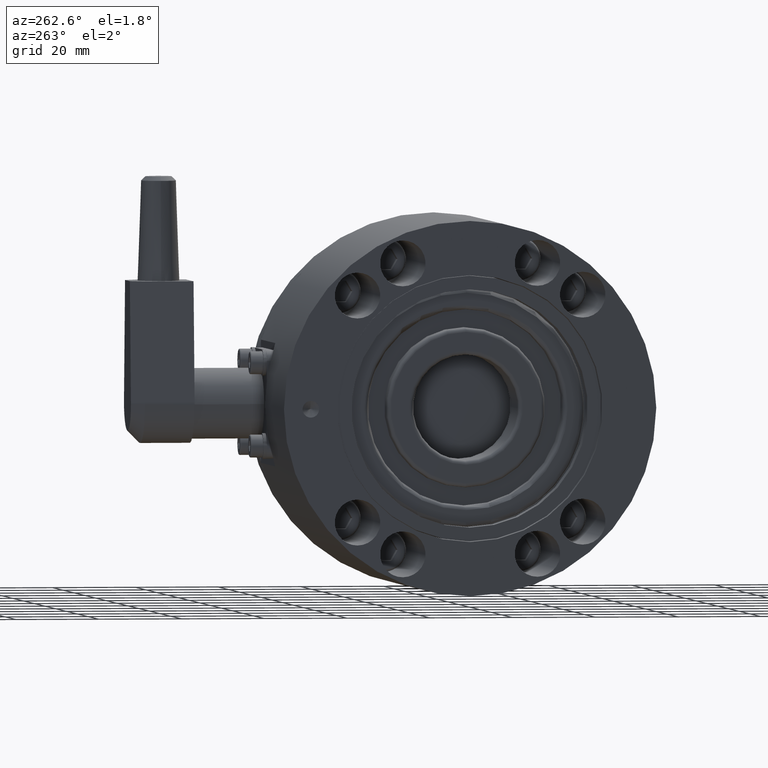
[diagram: clean part render]
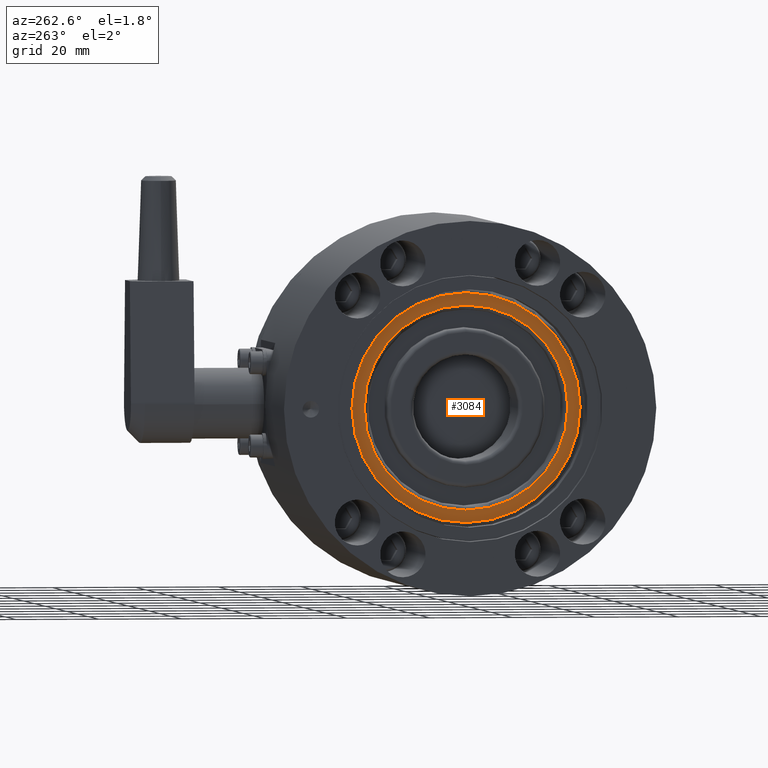
[diagram: same view with one face highlighted and labeled with its STEP entity id]
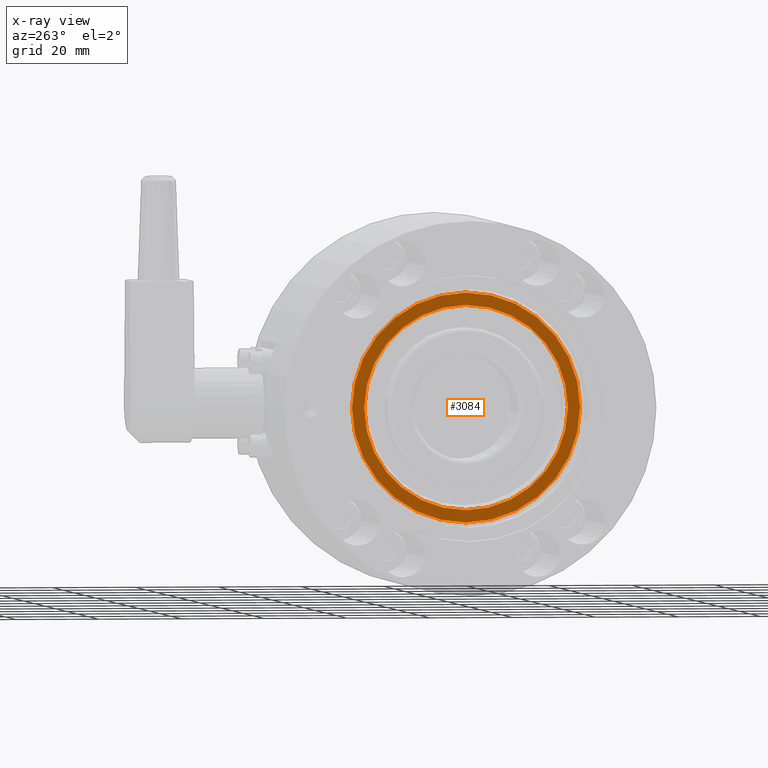
[diagram: x-ray of the same camera — body ghosted, the highlighted face saturated]
A machine part, auxiliary view. The second image highlights one B-rep face of the part: STEP entity #3084.
The next image is the same camera in x-ray: the body ghosted, the highlighted face saturated — about 0% of this face is hidden behind the body in this view.
In plain terms, the highlighted planar face has unit normal (1, 0, 0).
Its self-contained STEP definition (entity closure, byte-faithful):
#172 = VERTEX_POINT ( 'NONE', #6543 ) ;
#534 = ORIENTED_EDGE ( 'NONE', *, *, #9731, .T. ) ;
#1020 = FACE_OUTER_BOUND ( 'NONE', #9811, .T. ) ;
#1667 = FACE_BOUND ( 'NONE', #3603, .T. ) ;
#2096 = DIRECTION ( 'NONE',  ( 1.000000000000000000, 0.000000000000000000, 0.000000000000000000 ) ) ;
#2109 = AXIS2_PLACEMENT_3D ( 'NONE', #12876, #2096, #8563 ) ;
#2570 = ORIENTED_EDGE ( 'NONE', *, *, #13251, .T. ) ;
#2893 = DIRECTION ( 'NONE',  ( 0.000000000000000000, 0.000000000000000000, -1.000000000000000000 ) ) ;
#2967 = VERTEX_POINT ( 'NONE', #3728 ) ;
#3084 = ADVANCED_FACE ( 'NONE', ( #1667, #1020 ), #12490, .F. ) ;
#3412 = CARTESIAN_POINT ( 'NONE',  ( 0.000000000000000000, 0.000000000000000000, -27.57499999999999929 ) ) ;
#3603 = EDGE_LOOP ( 'NONE', ( #13103, #534 ) ) ;
#3728 = CARTESIAN_POINT ( 'NONE',  ( 0.000000000000000000, 3.012631125902489220E-15, 24.60000000000000497 ) ) ;
#4624 = AXIS2_PLACEMENT_3D ( 'NONE', #10026, #6886, #9882 ) ;
#5301 = DIRECTION ( 'NONE',  ( 0.000000000000000000, 0.000000000000000000, -1.000000000000000000 ) ) ;
#6165 = DIRECTION ( 'NONE',  ( 0.000000000000000000, 0.000000000000000000, -1.000000000000000000 ) ) ;
#6198 = VERTEX_POINT ( 'NONE', #3412 ) ;
#6543 = CARTESIAN_POINT ( 'NONE',  ( 0.000000000000000000, 0.000000000000000000, -24.60000000000000497 ) ) ;
#6550 = AXIS2_PLACEMENT_3D ( 'NONE', #8041, #7177, #2893 ) ;
#6886 = DIRECTION ( 'NONE',  ( -1.000000000000000000, -0.000000000000000000, -0.000000000000000000 ) ) ;
#6994 = CIRCLE ( 'NONE', #12365, 27.57499999999999929 ) ;
#7177 = DIRECTION ( 'NONE',  ( 1.000000000000000000, 0.000000000000000000, 0.000000000000000000 ) ) ;
#7284 = DIRECTION ( 'NONE',  ( 1.000000000000000000, 0.000000000000000000, 0.000000000000000000 ) ) ;
#7583 = ORIENTED_EDGE ( 'NONE', *, *, #7661, .T. ) ;
#7661 = EDGE_CURVE ( 'NONE', #9641, #6198, #6994, .T. ) ;
#8041 = CARTESIAN_POINT ( 'NONE',  ( 0.000000000000000000, 0.000000000000000000, 0.000000000000000000 ) ) ;
#8231 = CIRCLE ( 'NONE', #6550, 24.60000000000000497 ) ;
#8563 = DIRECTION ( 'NONE',  ( 0.000000000000000000, 0.000000000000000000, -1.000000000000000000 ) ) ;
#8947 = CARTESIAN_POINT ( 'NONE',  ( 0.000000000000000000, 0.000000000000000000, 0.000000000000000000 ) ) ;
#9207 = CARTESIAN_POINT ( 'NONE',  ( 0.000000000000000000, 12.69999999999999929, 0.000000000000000000 ) ) ;
#9641 = VERTEX_POINT ( 'NONE', #13241 ) ;
#9731 = EDGE_CURVE ( 'NONE', #2967, #172, #8231, .T. ) ;
#9811 = EDGE_LOOP ( 'NONE', ( #2570, #7583 ) ) ;
#9882 = DIRECTION ( 'NONE',  ( 0.000000000000000000, 0.000000000000000000, -1.000000000000000000 ) ) ;
#10026 = CARTESIAN_POINT ( 'NONE',  ( 0.000000000000000000, 0.000000000000000000, 0.000000000000000000 ) ) ;
#10582 = DIRECTION ( 'NONE',  ( -1.000000000000000000, -0.000000000000000000, -0.000000000000000000 ) ) ;
#11786 = EDGE_CURVE ( 'NONE', #172, #2967, #12357, .T. ) ;
#11821 = CIRCLE ( 'NONE', #4624, 27.57499999999999929 ) ;
#12357 = CIRCLE ( 'NONE', #2109, 24.60000000000000497 ) ;
#12365 = AXIS2_PLACEMENT_3D ( 'NONE', #8947, #10582, #5301 ) ;
#12490 = PLANE ( 'NONE',  #12684 ) ;
#12684 = AXIS2_PLACEMENT_3D ( 'NONE', #9207, #7284, #6165 ) ;
#12876 = CARTESIAN_POINT ( 'NONE',  ( 0.000000000000000000, 0.000000000000000000, 0.000000000000000000 ) ) ;
#13103 = ORIENTED_EDGE ( 'NONE', *, *, #11786, .T. ) ;
#13241 = CARTESIAN_POINT ( 'NONE',  ( 0.000000000000000000, 3.438195888606194096E-15, 27.57499999999999929 ) ) ;
#13251 = EDGE_CURVE ( 'NONE', #6198, #9641, #11821, .T. ) ;